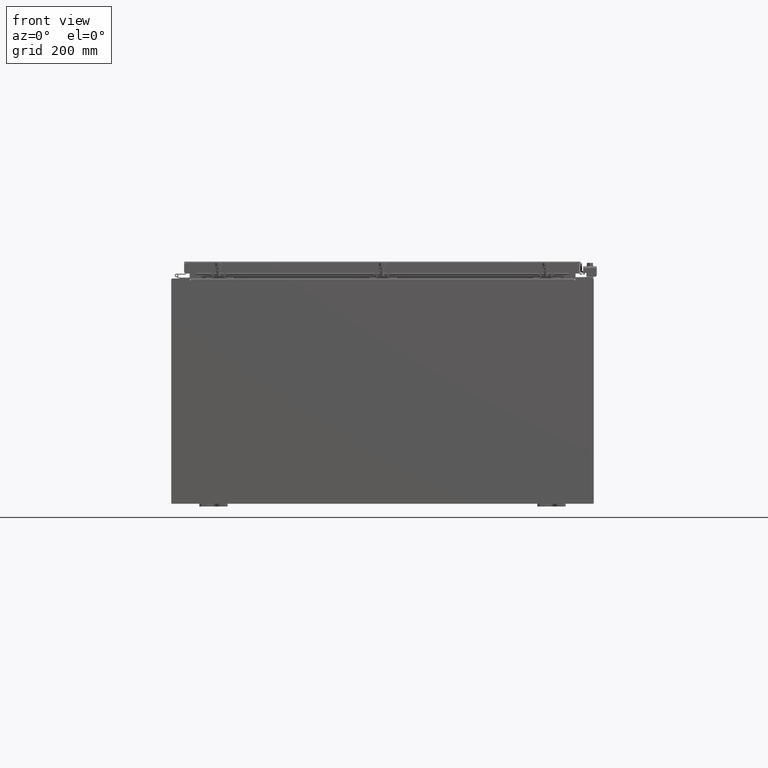
[diagram: clean part render]
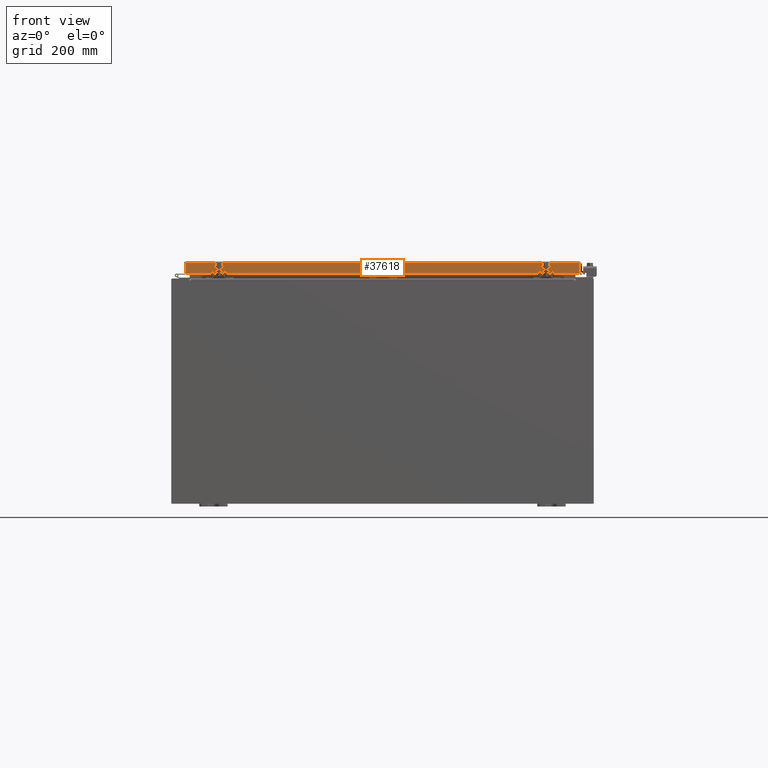
[diagram: same view with one face highlighted and labeled with its STEP entity id]
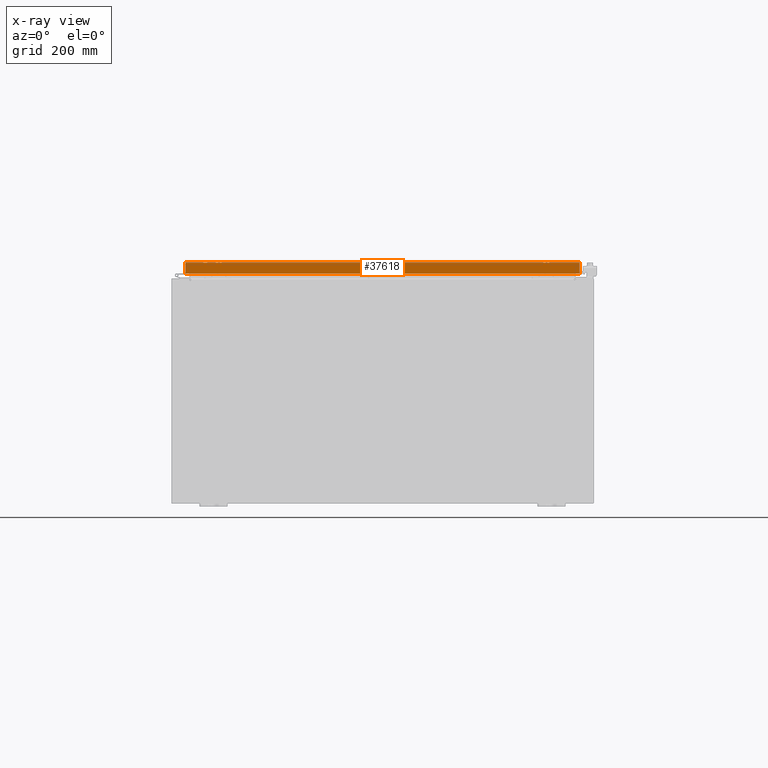
[diagram: x-ray of the same camera — body ghosted, the highlighted face saturated]
A machine part, front view. The second image highlights one B-rep face of the part: STEP entity #37618.
The next image is the same camera in x-ray: the body ghosted, the highlighted face saturated — about 0% of this face is hidden behind the body in this view.
In plain terms, the highlighted planar face has unit normal (-0, 1, -0).
Its self-contained STEP definition (entity closure, byte-faithful):
#209 = DIRECTION ( 'NONE',  ( -1.000000000000000000, 4.379057701015054300E-047, 1.212817869044015600E-016 ) ) ;
#618 = CARTESIAN_POINT ( 'NONE',  ( -13.98915786437627800, -17.09400000000000100, -0.08770000000000007000 ) ) ;
#1139 = DIRECTION ( 'NONE',  ( 1.000000000000000000, 3.418789178101959700E-031, -9.318824769679573900E-046 ) ) ;
#1628 = EDGE_CURVE ( 'NONE', #40298, #30123, #19188, .T. ) ;
#1643 = VERTEX_POINT ( 'NONE', #35125 ) ;
#1774 = EDGE_CURVE ( 'NONE', #13068, #10174, #13827, .T. ) ;
#5552 = PLANE ( 'NONE',  #32346 ) ;
#5870 = CARTESIAN_POINT ( 'NONE',  ( 13.98915786437626500, -17.09400000000000100, -0.08770000000000007000 ) ) ;
#6406 = ORIENTED_EDGE ( 'NONE', *, *, #1774, .T. ) ;
#8022 = LINE ( 'NONE', #17341, #38149 ) ;
#8614 = ORIENTED_EDGE ( 'NONE', *, *, #41551, .F. ) ;
#8890 = FACE_OUTER_BOUND ( 'NONE', #12418, .T. ) ;
#9096 = DIRECTION ( 'NONE',  ( -3.418789178101958800E-031, 1.000000000000000000, -2.818880942772360100E-015 ) ) ;
#10174 = VERTEX_POINT ( 'NONE', #38867 ) ;
#12293 = VECTOR ( 'NONE', #1139, 39.37007874015748100 ) ;
#12418 = EDGE_LOOP ( 'NONE', ( #22740, #6406, #43604, #8614, #24499, #30358 ) ) ;
#12450 = LINE ( 'NONE', #13331, #12293 ) ;
#12837 = EDGE_CURVE ( 'NONE', #30123, #29654, #35590, .T. ) ;
#13068 = VERTEX_POINT ( 'NONE', #618 ) ;
#13331 = CARTESIAN_POINT ( 'NONE',  ( 14.07799999999999400, -17.09400000000000100, -0.08770000000000007000 ) ) ;
#13654 = CARTESIAN_POINT ( 'NONE',  ( 13.23915786437626000, -17.09399999999999800, -0.8500000000000006400 ) ) ;
#13827 = LINE ( 'NONE', #24300, #35056 ) ;
#14985 = LINE ( 'NONE', #13654, #31601 ) ;
#16486 = EDGE_CURVE ( 'NONE', #1643, #10174, #8022, .T. ) ;
#17025 = CARTESIAN_POINT ( 'NONE',  ( 14.07799999999999400, -17.09400000000000100, -0.8499999999999996400 ) ) ;
#17137 = VECTOR ( 'NONE', #43696, 39.37007874015748100 ) ;
#17341 = CARTESIAN_POINT ( 'NONE',  ( 14.07799999999999400, -17.09400000000000100, -0.8499999999999996400 ) ) ;
#18824 = VECTOR ( 'NONE', #34115, 39.37007874015748100 ) ;
#19188 = LINE ( 'NONE', #38715, #18824 ) ;
#22740 = ORIENTED_EDGE ( 'NONE', *, *, #27833, .F. ) ;
#23458 = CARTESIAN_POINT ( 'NONE',  ( 13.98915786437626400, -17.09400000000000100, -0.8499999999999996400 ) ) ;
#24300 = CARTESIAN_POINT ( 'NONE',  ( -13.98915786437627600, -17.09400000000000100, 4.844676449176230700E-014 ) ) ;
#24499 = ORIENTED_EDGE ( 'NONE', *, *, #12837, .F. ) ;
#25913 = CARTESIAN_POINT ( 'NONE',  ( 5.844078221047488100E-030, -17.09400000000000100, 4.844676449176230700E-014 ) ) ;
#27833 = EDGE_CURVE ( 'NONE', #13068, #40298, #12450, .T. ) ;
#29654 = VERTEX_POINT ( 'NONE', #41374 ) ;
#30123 = VERTEX_POINT ( 'NONE', #23458 ) ;
#30358 = ORIENTED_EDGE ( 'NONE', *, *, #1628, .F. ) ;
#31601 = VECTOR ( 'NONE', #43599, 39.37007874015748100 ) ;
#32346 = AXIS2_PLACEMENT_3D ( 'NONE', #25913, #9096, #32448 ) ;
#32448 = DIRECTION ( 'NONE',  ( 0.0000000000000000000, 2.818880942772360100E-015, 1.000000000000000000 ) ) ;
#33318 = DIRECTION ( 'NONE',  ( 0.0000000000000000000, -2.818880942772360100E-015, -1.000000000000000000 ) ) ;
#34115 = DIRECTION ( 'NONE',  ( -0.0000000000000000000, -2.818880942772360100E-015, -1.000000000000000000 ) ) ;
#35056 = VECTOR ( 'NONE', #33318, 39.37007874015748100 ) ;
#35125 = CARTESIAN_POINT ( 'NONE',  ( -13.23915786437627800, -17.09399999999999800, -0.8500000000000006400 ) ) ;
#35590 = LINE ( 'NONE', #17025, #17137 ) ;
#37618 = ADVANCED_FACE ( 'NONE', ( #8890 ), #5552, .F. ) ;
#38149 = VECTOR ( 'NONE', #209, 39.37007874015748100 ) ;
#38715 = CARTESIAN_POINT ( 'NONE',  ( 13.98915786437626400, -17.09400000000000100, -0.07469999999999978000 ) ) ;
#38867 = CARTESIAN_POINT ( 'NONE',  ( -13.98915786437627800, -17.09400000000000100, -0.8499999999999963100 ) ) ;
#40298 = VERTEX_POINT ( 'NONE', #5870 ) ;
#41374 = CARTESIAN_POINT ( 'NONE',  ( 13.23915786437626000, -17.09399999999999800, -0.8500000000000006400 ) ) ;
#41551 = EDGE_CURVE ( 'NONE', #29654, #1643, #14985, .T. ) ;
#43599 = DIRECTION ( 'NONE',  ( -1.000000000000000000, 0.0000000000000000000, 0.0000000000000000000 ) ) ;
#43604 = ORIENTED_EDGE ( 'NONE', *, *, #16486, .F. ) ;
#43696 = DIRECTION ( 'NONE',  ( -1.000000000000000000, 4.379057701015054300E-047, 1.212817869044015600E-016 ) ) ;